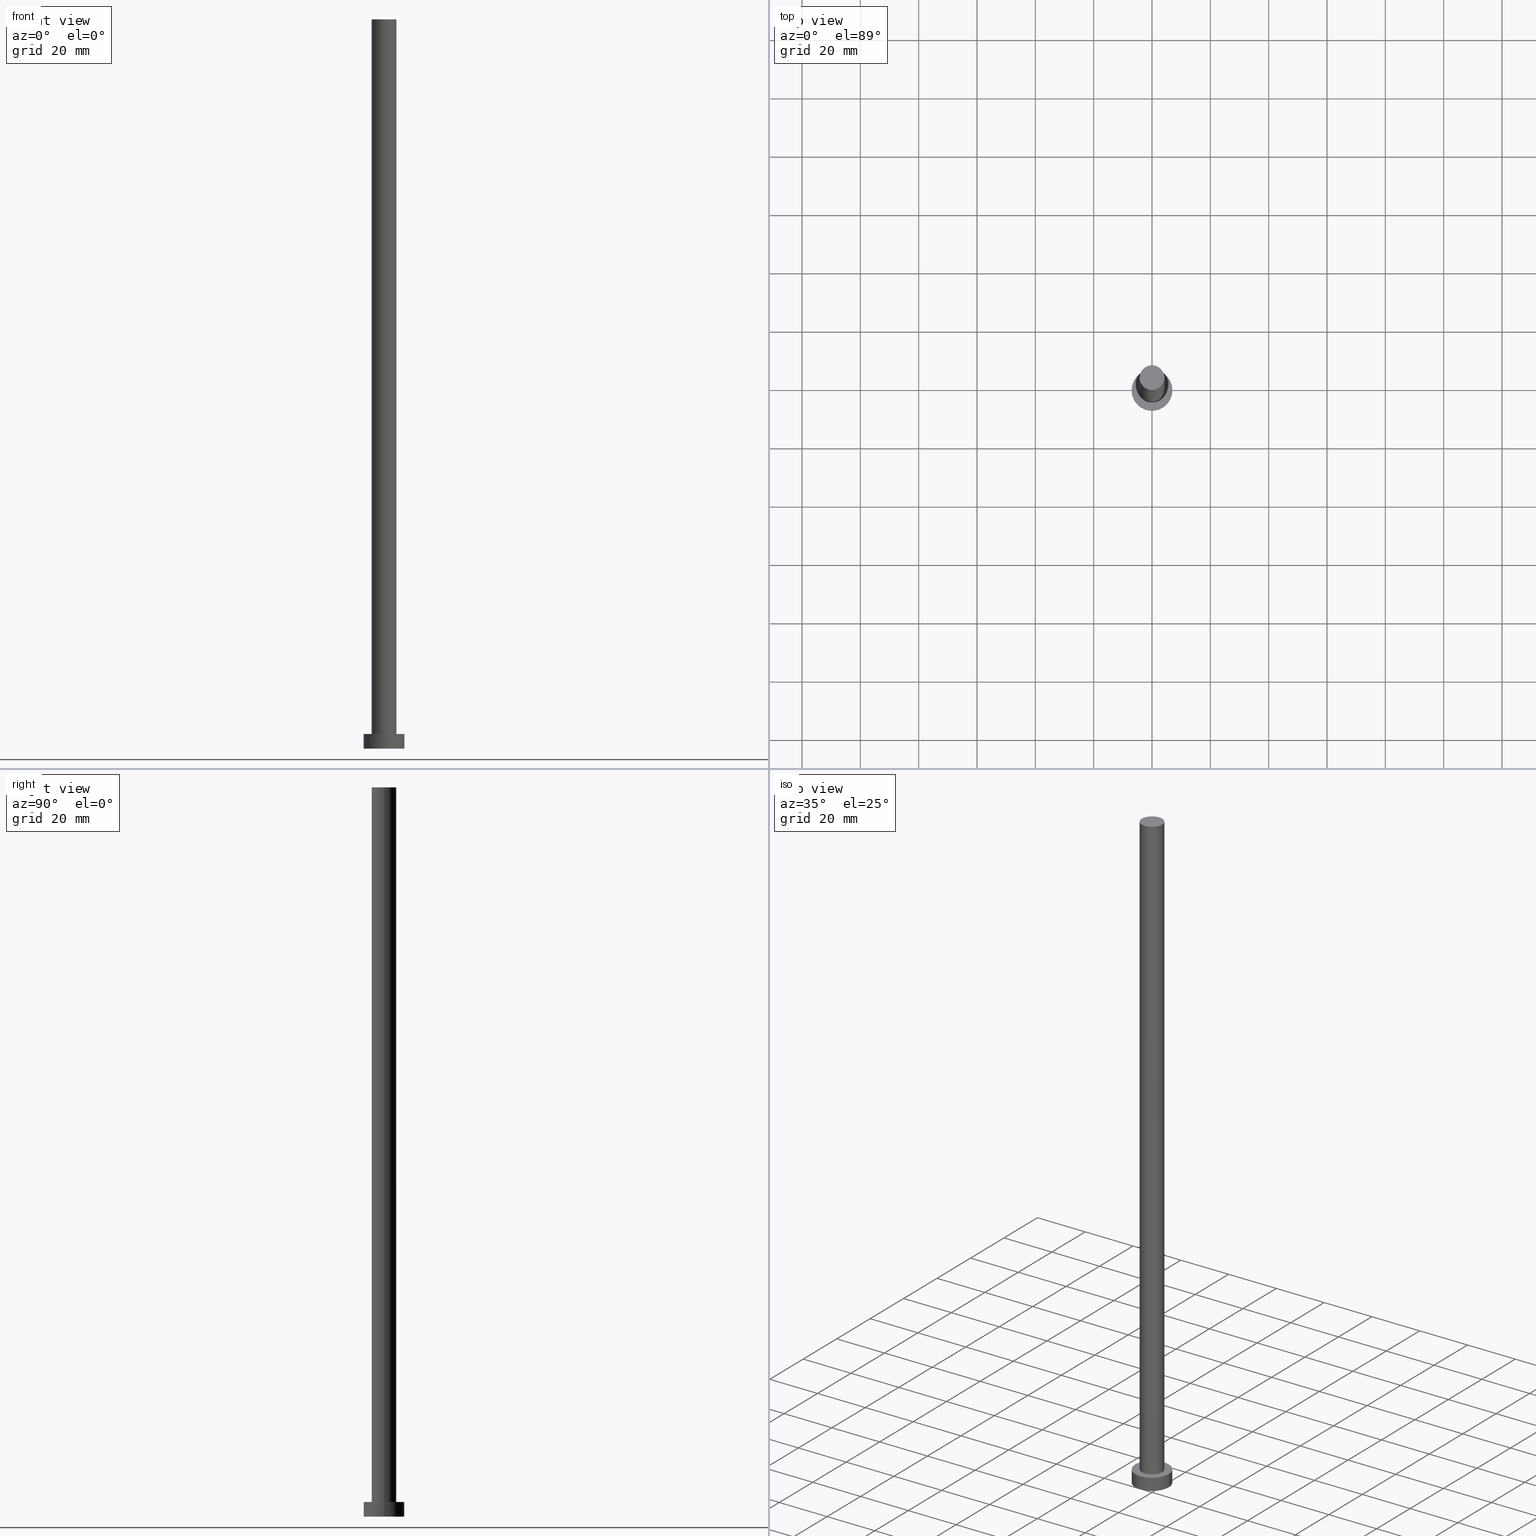
[diagram: canonical four-view strip — front | top / right | iso, engineering-drawing reading convention]
A machine part, canonical four-view strip (front | top / right | iso — engineering-drawing reading convention). The complete STEP part file that produces these views, byte-faithful:
ISO-10303-21;
HEADER;
FILE_DESCRIPTION (( 'STEP AP203' ),
    '1' );
FILE_NAME ('9380.STEP',
    '2023-02-12T11:37:59',
    ( '' ),
    ( '' ),
    'SwSTEP 2.0',
    'SolidWorks 2019',
    '' );
FILE_SCHEMA (( 'CONFIG_CONTROL_DESIGN' ));
ENDSEC;

DATA;
#1 = ORIENTED_EDGE ( 'NONE', *, *, #193, .T. ) ;
#2 = AXIS2_PLACEMENT_3D ( 'NONE', #47, #226, #246 ) ;
#3 = EDGE_LOOP ( 'NONE', ( #56, #221, #86, #184 ) ) ;
#4 = LOCAL_TIME ( 12, 37, 59.00000000000000000, #55 ) ;
#5 = DIRECTION ( 'NONE',  ( 0.000000000000000000, 0.000000000000000000, 1.000000000000000000 ) ) ;
#6 = EDGE_CURVE ( 'NONE', #125, #123, #60, .T. ) ;
#7 = CARTESIAN_POINT ( 'NONE',  ( 0.000000000000000000, 0.000000000000000000, 250.0000000000000000 ) ) ;
#8 = AXIS2_PLACEMENT_3D ( 'NONE', #150, #27, #104 ) ;
#9 = LINE ( 'NONE', #64, #85 ) ;
#10 = CARTESIAN_POINT ( 'NONE',  ( 0.000000000000000000, 0.000000000000000000, 5.000000000000000000 ) ) ;
#11 = CARTESIAN_POINT ( 'NONE',  ( 0.000000000000000000, 0.000000000000000000, 250.0000000000000000 ) ) ;
#12 = PRODUCT ( '9380', '9380', '', ( #249 ) ) ;
#13 = PERSON_AND_ORGANIZATION ( #168, #185 ) ;
#14 = CALENDAR_DATE ( 2023, 12, 2 ) ;
#15 = LOCAL_TIME ( 12, 37, 59.00000000000000000, #192 ) ;
#16 = DATE_AND_TIME ( #76, #15 ) ;
#17 = ADVANCED_BREP_SHAPE_REPRESENTATION ( '9380', ( #100, #146 ), #132 ) ;
#18 = EDGE_LOOP ( 'NONE', ( #102, #242, #220, #201 ) ) ;
#19 = EDGE_LOOP ( 'NONE', ( #253, #238 ) ) ;
#20 = AXIS2_PLACEMENT_3D ( 'NONE', #92, #245, #131 ) ;
#21 = EDGE_CURVE ( 'NONE', #183, #22, #124, .T. ) ;
#22 = VERTEX_POINT ( 'NONE', #24 ) ;
#23 = ORIENTED_EDGE ( 'NONE', *, *, #119, .F. ) ;
#24 = CARTESIAN_POINT ( 'NONE',  ( -4.250000000000000000, 0.000000000000000000, 5.000000000000000000 ) ) ;
#25 = CARTESIAN_POINT ( 'NONE',  ( 0.000000000000000000, 0.000000000000000000, 250.0000000000000000 ) ) ;
#26 = CYLINDRICAL_SURFACE ( 'NONE', #117, 4.250000000000000000 ) ;
#27 = DIRECTION ( 'NONE',  ( 0.000000000000000000, 0.000000000000000000, 1.000000000000000000 ) ) ;
#28 = AXIS2_PLACEMENT_3D ( 'NONE', #10, #91, #49 ) ;
#29 = CARTESIAN_POINT ( 'NONE',  ( 0.000000000000000000, 0.000000000000000000, 0.000000000000000000 ) ) ;
#30 = APPLICATION_PROTOCOL_DEFINITION ( 'international standard', 'config_control_design', 1994, #133 ) ;
#31 = APPROVAL_PERSON_ORGANIZATION ( #53, #75, #54 ) ;
#32 = PERSON_AND_ORGANIZATION ( #168, #185 ) ;
#33 = SECURITY_CLASSIFICATION_LEVEL ( 'unclassified' ) ;
#34 = APPROVAL_STATUS ( 'not_yet_approved' ) ;
#35 = VERTEX_POINT ( 'NONE', #181 ) ;
#36 = EDGE_LOOP ( 'NONE', ( #1, #163 ) ) ;
#37 = CC_DESIGN_PERSON_AND_ORGANIZATION_ASSIGNMENT ( #232, #139, ( #254 ) ) ;
#38 = CALENDAR_DATE ( 2023, 12, 2 ) ;
#39 = ORIENTED_EDGE ( 'NONE', *, *, #120, .F. ) ;
#40 = CC_DESIGN_DATE_AND_TIME_ASSIGNMENT ( #215, #112, ( #140 ) ) ;
#41 = DIRECTION ( 'NONE',  ( -0.000000000000000000, -0.000000000000000000, -1.000000000000000000 ) ) ;
#42 = CARTESIAN_POINT ( 'NONE',  ( 7.000000000000000000, 8.572527594031473190E-16, 5.000000000000000000 ) ) ;
#43 = LOCAL_TIME ( 12, 37, 59.00000000000000000, #57 ) ;
#44 = CARTESIAN_POINT ( 'NONE',  ( 0.000000000000000000, 0.000000000000000000, 0.000000000000000000 ) ) ;
#45 = DIRECTION ( 'NONE',  ( 0.000000000000000000, 0.000000000000000000, 1.000000000000000000 ) ) ;
#46 = AXIS2_PLACEMENT_3D ( 'NONE', #243, #45, #171 ) ;
#47 = CARTESIAN_POINT ( 'NONE',  ( 0.000000000000000000, 0.000000000000000000, 5.000000000000000000 ) ) ;
#48 = LOCAL_TIME ( 12, 37, 59.00000000000000000, #197 ) ;
#49 = DIRECTION ( 'NONE',  ( 1.000000000000000000, 0.000000000000000000, 0.000000000000000000 ) ) ;
#50 = PRODUCT_RELATED_PRODUCT_CATEGORY ( 'detail', '', ( #12 ) ) ;
#51 = PERSON_AND_ORGANIZATION_ROLE ( 'creator' ) ;
#52 = APPROVAL_PERSON_ORGANIZATION ( #143, #65, #216 ) ;
#53 = PERSON_AND_ORGANIZATION ( #168, #185 ) ;
#54 = APPROVAL_ROLE ( '' ) ;
#55 = COORDINATED_UNIVERSAL_TIME_OFFSET ( 1, 0, .AHEAD. ) ;
#56 = ORIENTED_EDGE ( 'NONE', *, *, #89, .F. ) ;
#57 = COORDINATED_UNIVERSAL_TIME_OFFSET ( 1, 0, .AHEAD. ) ;
#58 = CIRCLE ( 'NONE', #46, 7.000000000000000000 ) ;
#59 = AXIS2_PLACEMENT_3D ( 'NONE', #155, #209, #127 ) ;
#60 = LINE ( 'NONE', #147, #78 ) ;
#61 = ORIENTED_EDGE ( 'NONE', *, *, #175, .T. ) ;
#62 = CARTESIAN_POINT ( 'NONE',  ( 4.250000000000000000, 5.204748896376250699E-16, 5.000000000000000000 ) ) ;
#63 = AXIS2_PLACEMENT_3D ( 'NONE', #73, #195, #113 ) ;
#64 = CARTESIAN_POINT ( 'NONE',  ( -7.000000000000000000, 0.000000000000000000, 5.000000000000000000 ) ) ;
#65 = APPROVAL ( #219, 'NEUR�EN�' ) ;
#66 = DIRECTION ( 'NONE',  ( 0.000000000000000000, 0.000000000000000000, 1.000000000000000000 ) ) ;
#67 = PRODUCT_DEFINITION_SHAPE ( 'NONE', 'NONE',  #140 ) ;
#68 = PLANE ( 'NONE',  #8 ) ;
#69 = CC_DESIGN_SECURITY_CLASSIFICATION ( #237, ( #254 ) ) ;
#70 = EDGE_CURVE ( 'NONE', #22, #123, #157, .T. ) ;
#71 = APPROVAL_STATUS ( 'not_yet_approved' ) ;
#72 = FACE_OUTER_BOUND ( 'NONE', #204, .T. ) ;
#73 = CARTESIAN_POINT ( 'NONE',  ( 0.000000000000000000, 0.000000000000000000, 5.000000000000000000 ) ) ;
#74 = AXIS2_PLACEMENT_3D ( 'NONE', #25, #5, #88 ) ;
#75 = APPROVAL ( #71, 'NEUR�EN�' ) ;
#76 = CALENDAR_DATE ( 2023, 12, 2 ) ;
#77 = DIRECTION ( 'NONE',  ( 0.000000000000000000, 0.000000000000000000, 1.000000000000000000 ) ) ;
#78 = VECTOR ( 'NONE', #222, 1000.000000000000000 ) ;
#79 = CC_DESIGN_DATE_AND_TIME_ASSIGNMENT ( #177, #251, ( #237 ) ) ;
#80 = APPROVAL_DATE_TIME ( #122, #65 ) ;
#81 = ORIENTED_EDGE ( 'NONE', *, *, #89, .T. ) ;
#82 = EDGE_LOOP ( 'NONE', ( #61, #255 ) ) ;
#83 = ORIENTED_EDGE ( 'NONE', *, *, #130, .F. ) ;
#84 = CC_DESIGN_PERSON_AND_ORGANIZATION_ASSIGNMENT ( #199, #51, ( #140 ) ) ;
#85 = VECTOR ( 'NONE', #206, 1000.000000000000000 ) ;
#86 = ORIENTED_EDGE ( 'NONE', *, *, #130, .T. ) ;
#87 = FACE_OUTER_BOUND ( 'NONE', #145, .T. ) ;
#88 = DIRECTION ( 'NONE',  ( 1.000000000000000000, 0.000000000000000000, 0.000000000000000000 ) ) ;
#89 = EDGE_CURVE ( 'NONE', #99, #162, #161, .T. ) ;
#90 = CYLINDRICAL_SURFACE ( 'NONE', #20, 7.000000000000000000 ) ;
#91 = DIRECTION ( 'NONE',  ( 0.000000000000000000, 0.000000000000000000, 1.000000000000000000 ) ) ;
#92 = CARTESIAN_POINT ( 'NONE',  ( 0.000000000000000000, 0.000000000000000000, 5.000000000000000000 ) ) ;
#93 = EDGE_CURVE ( 'NONE', #125, #183, #224, .T. ) ;
#94 = VECTOR ( 'NONE', #191, 1000.000000000000000 ) ;
#95 =( NAMED_UNIT ( * ) SI_UNIT ( $, .STERADIAN. ) SOLID_ANGLE_UNIT ( ) );
#96 = APPROVAL_DATE_TIME ( #16, #239 ) ;
#97 = CARTESIAN_POINT ( 'NONE',  ( 0.000000000000000000, 0.000000000000000000, 0.000000000000000000 ) ) ;
#98 = AXIS2_PLACEMENT_3D ( 'NONE', #134, #105, #210 ) ;
#99 = VERTEX_POINT ( 'NONE', #207 ) ;
#100 = MANIFOLD_SOLID_BREP ( 'P�idat vysunut�m3', #194 ) ;
#101 = CIRCLE ( 'NONE', #59, 4.250000000000000000 ) ;
#102 = ORIENTED_EDGE ( 'NONE', *, *, #6, .F. ) ;
#103 = ADVANCED_FACE ( 'NONE', ( #126 ), #166, .F. ) ;
#104 = DIRECTION ( 'NONE',  ( 1.000000000000000000, 0.000000000000000000, -0.000000000000000000 ) ) ;
#105 = DIRECTION ( 'NONE',  ( 0.000000000000000000, 0.000000000000000000, 1.000000000000000000 ) ) ;
#106 = ADVANCED_FACE ( 'NONE', ( #187 ), #228, .T. ) ;
#107 = FACE_OUTER_BOUND ( 'NONE', #3, .T. ) ;
#108 = AXIS2_PLACEMENT_3D ( 'NONE', #252, #77, #236 ) ;
#109 = DIRECTION ( 'NONE',  ( -1.000000000000000000, 0.000000000000000000, 0.000000000000000000 ) ) ;
#110 = ADVANCED_FACE ( 'NONE', ( #172 ), #68, .T. ) ;
#111 = DIRECTION ( 'NONE',  ( 0.000000000000000000, 0.000000000000000000, 1.000000000000000000 ) ) ;
#112 = DATE_TIME_ROLE ( 'creation_date' ) ;
#113 = DIRECTION ( 'NONE',  ( -1.000000000000000000, 0.000000000000000000, 0.000000000000000000 ) ) ;
#114 = ADVANCED_FACE ( 'NONE', ( #87 ), #26, .T. ) ;
#115 = PERSON_AND_ORGANIZATION_ROLE ( 'classification_officer' ) ;
#116 = PERSON_AND_ORGANIZATION_ROLE ( 'design_owner' ) ;
#117 = AXIS2_PLACEMENT_3D ( 'NONE', #11, #186, #109 ) ;
#118 = APPLICATION_CONTEXT ( 'configuration controlled 3d designs of mechanical parts and assemblies' ) ;
#119 = EDGE_CURVE ( 'NONE', #99, #35, #58, .T. ) ;
#120 = EDGE_CURVE ( 'NONE', #123, #22, #198, .T. ) ;
#121 = CC_DESIGN_APPROVAL ( #65, ( #237 ) ) ;
#122 = DATE_AND_TIME ( #38, #43 ) ;
#123 = VERTEX_POINT ( 'NONE', #62 ) ;
#124 = LINE ( 'NONE', #223, #129 ) ;
#125 = VERTEX_POINT ( 'NONE', #149 ) ;
#126 = FACE_OUTER_BOUND ( 'NONE', #19, .T. ) ;
#127 = DIRECTION ( 'NONE',  ( 1.000000000000000000, 0.000000000000000000, 0.000000000000000000 ) ) ;
#128 = DIRECTION ( 'NONE',  ( 0.000000000000000000, 0.000000000000000000, 1.000000000000000000 ) ) ;
#129 = VECTOR ( 'NONE', #41, 1000.000000000000000 ) ;
#130 = EDGE_CURVE ( 'NONE', #35, #200, #9, .T. ) ;
#131 = DIRECTION ( 'NONE',  ( -1.000000000000000000, 0.000000000000000000, 0.000000000000000000 ) ) ;
#132 =( GEOMETRIC_REPRESENTATION_CONTEXT ( 3 ) GLOBAL_UNCERTAINTY_ASSIGNED_CONTEXT ( ( #230 ) ) GLOBAL_UNIT_ASSIGNED_CONTEXT ( ( #234, #136, #95 ) ) REPRESENTATION_CONTEXT ( 'NONE', 'WORKASPACE' ) );
#133 = APPLICATION_CONTEXT ( 'configuration controlled 3d designs of mechanical parts and assemblies' ) ;
#134 = CARTESIAN_POINT ( 'NONE',  ( 0.000000000000000000, 0.000000000000000000, 0.000000000000000000 ) ) ;
#135 = CALENDAR_DATE ( 2023, 12, 2 ) ;
#136 =( NAMED_UNIT ( * ) PLANE_ANGLE_UNIT ( ) SI_UNIT ( $, .RADIAN. ) );
#137 = EDGE_CURVE ( 'NONE', #162, #200, #154, .T. ) ;
#138 = APPROVAL_PERSON_ORGANIZATION ( #32, #239, #211 ) ;
#139 = PERSON_AND_ORGANIZATION_ROLE ( 'design_supplier' ) ;
#140 = PRODUCT_DEFINITION ( 'NEZN�M�', '', #254, #180 ) ;
#141 = DIRECTION ( 'NONE',  ( 0.000000000000000000, 0.000000000000000000, 1.000000000000000000 ) ) ;
#142 = EDGE_LOOP ( 'NONE', ( #240, #39 ) ) ;
#143 = PERSON_AND_ORGANIZATION ( #168, #185 ) ;
#144 = AXIS2_PLACEMENT_3D ( 'NONE', #7, #167, #244 ) ;
#145 = EDGE_LOOP ( 'NONE', ( #165, #148, #205, #218 ) ) ;
#146 = AXIS2_PLACEMENT_3D ( 'NONE', #97, #141, #158 ) ;
#147 = CARTESIAN_POINT ( 'NONE',  ( 4.250000000000000000, 5.204748896376250699E-16, 250.0000000000000000 ) ) ;
#148 = ORIENTED_EDGE ( 'NONE', *, *, #6, .T. ) ;
#149 = CARTESIAN_POINT ( 'NONE',  ( 4.250000000000000000, 5.204748896376250699E-16, 250.0000000000000000 ) ) ;
#150 = CARTESIAN_POINT ( 'NONE',  ( 0.000000000000000000, 0.000000000000000000, 250.0000000000000000 ) ) ;
#151 = DIRECTION ( 'NONE',  ( 1.000000000000000000, 0.000000000000000000, 0.000000000000000000 ) ) ;
#152 = ADVANCED_FACE ( 'NONE', ( #107 ), #90, .T. ) ;
#153 = CARTESIAN_POINT ( 'NONE',  ( -4.250000000000000000, 0.000000000000000000, 250.0000000000000000 ) ) ;
#154 = CIRCLE ( 'NONE', #233, 7.000000000000000000 ) ;
#155 = CARTESIAN_POINT ( 'NONE',  ( 0.000000000000000000, 0.000000000000000000, 250.0000000000000000 ) ) ;
#156 = CARTESIAN_POINT ( 'NONE',  ( -7.000000000000000000, 0.000000000000000000, 0.000000000000000000 ) ) ;
#157 = CIRCLE ( 'NONE', #108, 4.250000000000000000 ) ;
#158 = DIRECTION ( 'NONE',  ( 1.000000000000000000, 0.000000000000000000, 0.000000000000000000 ) ) ;
#159 = COORDINATED_UNIVERSAL_TIME_OFFSET ( 1, 0, .AHEAD. ) ;
#160 = ORIENTED_EDGE ( 'NONE', *, *, #137, .T. ) ;
#161 = LINE ( 'NONE', #42, #94 ) ;
#162 = VERTEX_POINT ( 'NONE', #190 ) ;
#163 = ORIENTED_EDGE ( 'NONE', *, *, #119, .T. ) ;
#164 = AXIS2_PLACEMENT_3D ( 'NONE', #248, #66, #227 ) ;
#165 = ORIENTED_EDGE ( 'NONE', *, *, #93, .F. ) ;
#166 = PLANE ( 'NONE',  #98 ) ;
#167 = DIRECTION ( 'NONE',  ( -0.000000000000000000, -0.000000000000000000, -1.000000000000000000 ) ) ;
#168 = PERSON ( 'NEUR�EN�', 'NEUR�EN�', 'NEUR�EN�', ('NEUR�EN�'), ('NEUR�EN�'), ('NEUR�EN�') ) ;
#169 = CC_DESIGN_APPROVAL ( #75, ( #140 ) ) ;
#170 = CC_DESIGN_PERSON_AND_ORGANIZATION_ASSIGNMENT ( #212, #116, ( #12 ) ) ;
#171 = DIRECTION ( 'NONE',  ( 1.000000000000000000, 0.000000000000000000, 0.000000000000000000 ) ) ;
#172 = FACE_OUTER_BOUND ( 'NONE', #82, .T. ) ;
#173 = PLANE ( 'NONE',  #164 ) ;
#174 = PERSON_AND_ORGANIZATION_ROLE ( 'creator' ) ;
#175 = EDGE_CURVE ( 'NONE', #183, #125, #101, .T. ) ;
#176 = CYLINDRICAL_SURFACE ( 'NONE', #63, 7.000000000000000000 ) ;
#177 = DATE_AND_TIME ( #14, #48 ) ;
#178 = CC_DESIGN_PERSON_AND_ORGANIZATION_ASSIGNMENT ( #214, #115, ( #237 ) ) ;
#179 = LOCAL_TIME ( 12, 37, 59.00000000000000000, #159 ) ;
#180 = DESIGN_CONTEXT ( 'detailed design', #133, 'design' ) ;
#181 = CARTESIAN_POINT ( 'NONE',  ( -7.000000000000000000, 0.000000000000000000, 5.000000000000000000 ) ) ;
#182 = EDGE_CURVE ( 'NONE', #200, #162, #202, .T. ) ;
#183 = VERTEX_POINT ( 'NONE', #153 ) ;
#184 = ORIENTED_EDGE ( 'NONE', *, *, #182, .T. ) ;
#185 = ORGANIZATION ( 'NEUR�EN�', 'NEUR�EN�', '' ) ;
#186 = DIRECTION ( 'NONE',  ( -0.000000000000000000, -0.000000000000000000, -1.000000000000000000 ) ) ;
#187 = FACE_OUTER_BOUND ( 'NONE', #18, .T. ) ;
#188 = FACE_OUTER_BOUND ( 'NONE', #36, .T. ) ;
#189 = ADVANCED_FACE ( 'NONE', ( #229, #188 ), #173, .T. ) ;
#190 = CARTESIAN_POINT ( 'NONE',  ( 7.000000000000000000, 8.572527594031473190E-16, 0.000000000000000000 ) ) ;
#191 = DIRECTION ( 'NONE',  ( -0.000000000000000000, -0.000000000000000000, -1.000000000000000000 ) ) ;
#192 = COORDINATED_UNIVERSAL_TIME_OFFSET ( 1, 0, .AHEAD. ) ;
#193 = EDGE_CURVE ( 'NONE', #35, #99, #213, .T. ) ;
#194 = CLOSED_SHELL ( 'NONE', ( #114, #247, #152, #189, #103, #106, #110 ) ) ;
#195 = DIRECTION ( 'NONE',  ( -0.000000000000000000, -0.000000000000000000, -1.000000000000000000 ) ) ;
#196 = CALENDAR_DATE ( 2023, 12, 2 ) ;
#197 = COORDINATED_UNIVERSAL_TIME_OFFSET ( 1, 0, .AHEAD. ) ;
#198 = CIRCLE ( 'NONE', #2, 4.250000000000000000 ) ;
#199 = PERSON_AND_ORGANIZATION ( #168, #185 ) ;
#200 = VERTEX_POINT ( 'NONE', #156 ) ;
#201 = ORIENTED_EDGE ( 'NONE', *, *, #70, .T. ) ;
#202 = CIRCLE ( 'NONE', #241, 7.000000000000000000 ) ;
#203 = SHAPE_DEFINITION_REPRESENTATION ( #67, #17 ) ;
#204 = EDGE_LOOP ( 'NONE', ( #23, #81, #160, #83 ) ) ;
#205 = ORIENTED_EDGE ( 'NONE', *, *, #120, .T. ) ;
#206 = DIRECTION ( 'NONE',  ( -0.000000000000000000, -0.000000000000000000, -1.000000000000000000 ) ) ;
#207 = CARTESIAN_POINT ( 'NONE',  ( 7.000000000000000000, 8.572527594031473190E-16, 5.000000000000000000 ) ) ;
#208 = CC_DESIGN_APPROVAL ( #239, ( #254 ) ) ;
#209 = DIRECTION ( 'NONE',  ( 0.000000000000000000, 0.000000000000000000, 1.000000000000000000 ) ) ;
#210 = DIRECTION ( 'NONE',  ( 1.000000000000000000, 0.000000000000000000, -0.000000000000000000 ) ) ;
#211 = APPROVAL_ROLE ( '' ) ;
#212 = PERSON_AND_ORGANIZATION ( #168, #185 ) ;
#213 = CIRCLE ( 'NONE', #28, 7.000000000000000000 ) ;
#214 = PERSON_AND_ORGANIZATION ( #168, #185 ) ;
#215 = DATE_AND_TIME ( #135, #4 ) ;
#216 = APPROVAL_ROLE ( '' ) ;
#217 = CC_DESIGN_PERSON_AND_ORGANIZATION_ASSIGNMENT ( #13, #174, ( #254 ) ) ;
#218 = ORIENTED_EDGE ( 'NONE', *, *, #21, .F. ) ;
#219 = APPROVAL_STATUS ( 'not_yet_approved' ) ;
#220 = ORIENTED_EDGE ( 'NONE', *, *, #21, .T. ) ;
#221 = ORIENTED_EDGE ( 'NONE', *, *, #193, .F. ) ;
#222 = DIRECTION ( 'NONE',  ( -0.000000000000000000, -0.000000000000000000, -1.000000000000000000 ) ) ;
#223 = CARTESIAN_POINT ( 'NONE',  ( -4.250000000000000000, 0.000000000000000000, 250.0000000000000000 ) ) ;
#224 = CIRCLE ( 'NONE', #74, 4.250000000000000000 ) ;
#225 = DIRECTION ( 'NONE',  ( 1.000000000000000000, 0.000000000000000000, 0.000000000000000000 ) ) ;
#226 = DIRECTION ( 'NONE',  ( 0.000000000000000000, 0.000000000000000000, 1.000000000000000000 ) ) ;
#227 = DIRECTION ( 'NONE',  ( 1.000000000000000000, 0.000000000000000000, -0.000000000000000000 ) ) ;
#228 = CYLINDRICAL_SURFACE ( 'NONE', #144, 4.250000000000000000 ) ;
#229 = FACE_BOUND ( 'NONE', #142, .T. ) ;
#230 = UNCERTAINTY_MEASURE_WITH_UNIT (LENGTH_MEASURE( 1.000000000000000082E-05 ), #234, 'distance_accuracy_value', 'NONE');
#231 = APPLICATION_PROTOCOL_DEFINITION ( 'international standard', 'config_control_design', 1994, #118 ) ;
#232 = PERSON_AND_ORGANIZATION ( #168, #185 ) ;
#233 = AXIS2_PLACEMENT_3D ( 'NONE', #44, #128, #225 ) ;
#234 =( LENGTH_UNIT ( ) NAMED_UNIT ( * ) SI_UNIT ( .MILLI., .METRE. ) );
#235 = APPROVAL_DATE_TIME ( #250, #75 ) ;
#236 = DIRECTION ( 'NONE',  ( 1.000000000000000000, 0.000000000000000000, 0.000000000000000000 ) ) ;
#237 = SECURITY_CLASSIFICATION ( '', '', #33 ) ;
#238 = ORIENTED_EDGE ( 'NONE', *, *, #137, .F. ) ;
#239 = APPROVAL ( #34, 'NEUR�EN�' ) ;
#240 = ORIENTED_EDGE ( 'NONE', *, *, #70, .F. ) ;
#241 = AXIS2_PLACEMENT_3D ( 'NONE', #29, #111, #151 ) ;
#242 = ORIENTED_EDGE ( 'NONE', *, *, #175, .F. ) ;
#243 = CARTESIAN_POINT ( 'NONE',  ( 0.000000000000000000, 0.000000000000000000, 5.000000000000000000 ) ) ;
#244 = DIRECTION ( 'NONE',  ( -1.000000000000000000, 0.000000000000000000, 0.000000000000000000 ) ) ;
#245 = DIRECTION ( 'NONE',  ( -0.000000000000000000, -0.000000000000000000, -1.000000000000000000 ) ) ;
#246 = DIRECTION ( 'NONE',  ( 1.000000000000000000, 0.000000000000000000, 0.000000000000000000 ) ) ;
#247 = ADVANCED_FACE ( 'NONE', ( #72 ), #176, .T. ) ;
#248 = CARTESIAN_POINT ( 'NONE',  ( 0.000000000000000000, 0.000000000000000000, 5.000000000000000000 ) ) ;
#249 = MECHANICAL_CONTEXT ( 'NONE', #118, 'mechanical' ) ;
#250 = DATE_AND_TIME ( #196, #179 ) ;
#251 = DATE_TIME_ROLE ( 'classification_date' ) ;
#252 = CARTESIAN_POINT ( 'NONE',  ( 0.000000000000000000, 0.000000000000000000, 5.000000000000000000 ) ) ;
#253 = ORIENTED_EDGE ( 'NONE', *, *, #182, .F. ) ;
#254 = PRODUCT_DEFINITION_FORMATION_WITH_SPECIFIED_SOURCE ( 'LIBOVOLN�', '', #12, .NOT_KNOWN. ) ;
#255 = ORIENTED_EDGE ( 'NONE', *, *, #93, .T. ) ;
ENDSEC;
END-ISO-10303-21;
